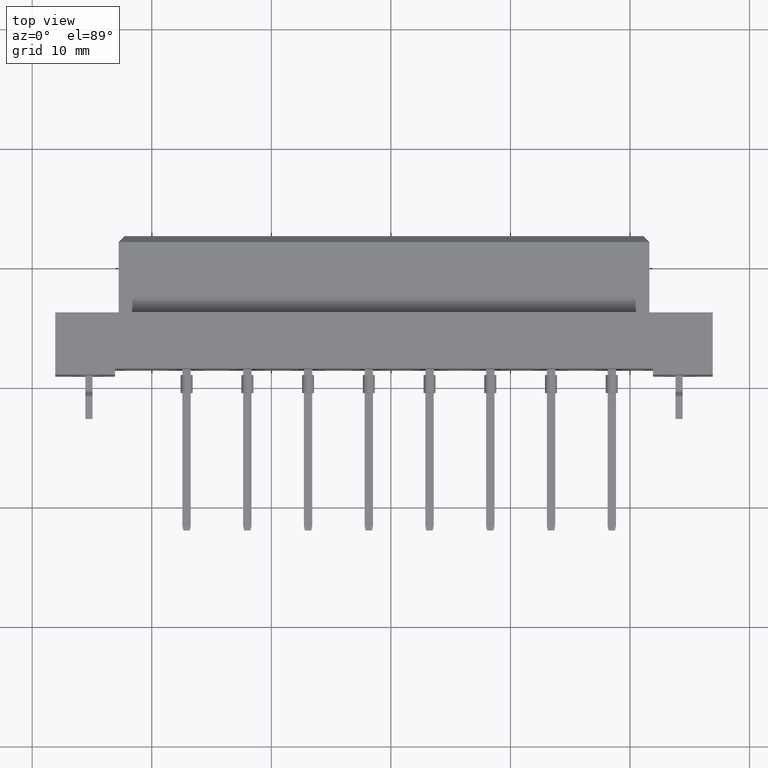
[diagram: clean part render]
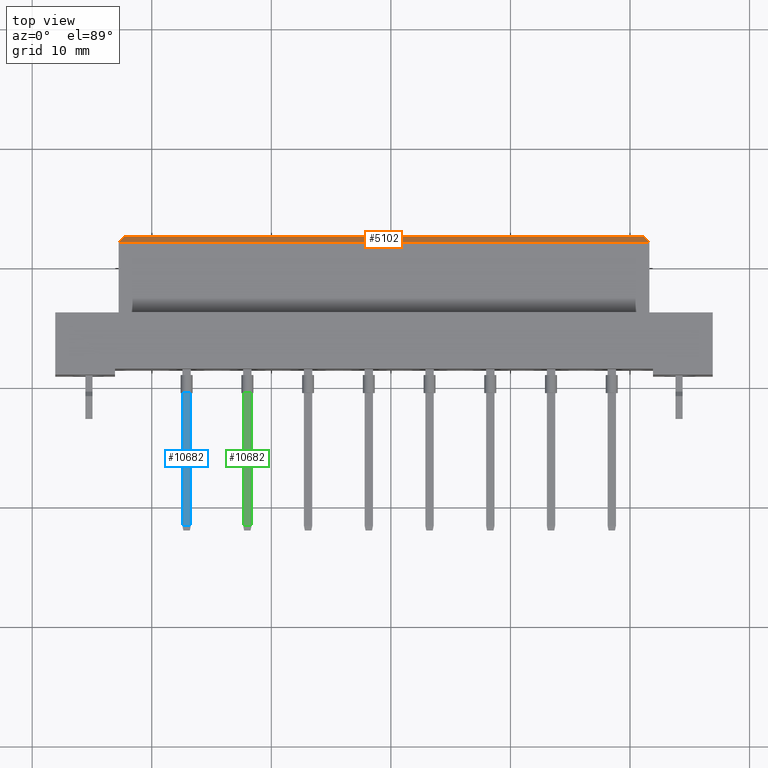
[diagram: same view with three faces highlighted in distinct colors, each labeled with its STEP entity id]
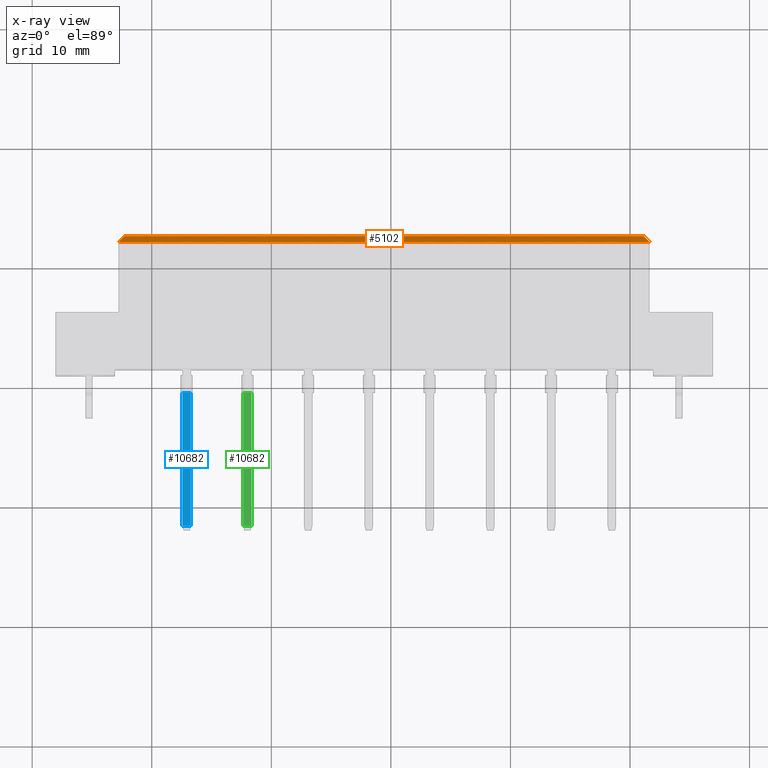
[diagram: x-ray of the same camera — body ghosted, the three highlighted faces saturated]
A machine part, top view with three faces highlighted in distinct colors.
The next image is the same camera in x-ray (body ghosted, the three faces saturated) — at least one of them is partly hidden behind the body in this view.
Their STEP definitions:

[orange] entity #5102 — the highlighted planar face has unit normal (0, 0.7071, 0.7071).
#275 = CARTESIAN_POINT ( 'NONE',  ( 21.69999999999997797, 0.0000000000000000000, 3.749999999999986677 ) ) ;
#1067 = VECTOR ( 'NONE', #14093, 999.9999999999998863 ) ;
#2697 = EDGE_CURVE ( 'NONE', #3259, #6049, #4433, .T. ) ;
#2765 = EDGE_LOOP ( 'NONE', ( #3588, #18241, #15588, #20747 ) ) ;
#3178 = VECTOR ( 'NONE', #17078, 1000.000000000000000 ) ;
#3259 = VERTEX_POINT ( 'NONE', #12567 ) ;
#3588 = ORIENTED_EDGE ( 'NONE', *, *, #20468, .T. ) ;
#4142 = LINE ( 'NONE', #14094, #3178 ) ;
#4159 = DIRECTION ( 'NONE',  ( 0.0000000000000000000, 0.7071067811865475727, 0.7071067811865475727 ) ) ;
#4433 = LINE ( 'NONE', #14187, #10288 ) ;
#5102 = ADVANCED_FACE ( 'NONE', ( #10822 ), #12022, .T. ) ;
#5105 = AXIS2_PLACEMENT_3D ( 'NONE', #7438, #4159, #20069 ) ;
#6049 = VERTEX_POINT ( 'NONE', #16469 ) ;
#6113 = VERTEX_POINT ( 'NONE', #275 ) ;
#7341 = LINE ( 'NONE', #20063, #7528 ) ;
#7438 = CARTESIAN_POINT ( 'NONE',  ( 27.49999999999999645, 0.0000000000000000000, 3.749999999999986677 ) ) ;
#7528 = VECTOR ( 'NONE', #15395, 999.9999999999998863 ) ;
#8720 = CARTESIAN_POINT ( 'NONE',  ( -21.69999999999997797, 0.0000000000000000000, 3.749999999999986677 ) ) ;
#9006 = EDGE_CURVE ( 'NONE', #9556, #6113, #4142, .T. ) ;
#9556 = VERTEX_POINT ( 'NONE', #8720 ) ;
#10288 = VECTOR ( 'NONE', #10895, 1000.000000000000000 ) ;
#10598 = CARTESIAN_POINT ( 'NONE',  ( 23.63333333333331510, -1.933333333333340232, 5.683333333333326465 ) ) ;
#10822 = FACE_OUTER_BOUND ( 'NONE', #2765, .T. ) ;
#10895 = DIRECTION ( 'NONE',  ( -1.000000000000000000, 0.0000000000000000000, 0.0000000000000000000 ) ) ;
#12022 = PLANE ( 'NONE',  #5105 ) ;
#12567 = CARTESIAN_POINT ( 'NONE',  ( 22.19999999999999218, -0.5000000000000143219, 4.250000000000000888 ) ) ;
#14093 = DIRECTION ( 'NONE',  ( 0.5773502691896257311, -0.5773502691896257311, 0.5773502691896257311 ) ) ;
#14094 = CARTESIAN_POINT ( 'NONE',  ( 22.19999999999999218, 0.0000000000000000000, 3.749999999999986677 ) ) ;
#14187 = CARTESIAN_POINT ( 'NONE',  ( -22.19999999999999218, -0.5000000000000143219, 4.250000000000000888 ) ) ;
#14977 = EDGE_CURVE ( 'NONE', #6113, #3259, #18858, .T. ) ;
#15395 = DIRECTION ( 'NONE',  ( -0.5773502691896257311, -0.5773502691896257311, 0.5773502691896257311 ) ) ;
#15588 = ORIENTED_EDGE ( 'NONE', *, *, #14977, .F. ) ;
#16469 = CARTESIAN_POINT ( 'NONE',  ( -22.19999999999999218, -0.5000000000000143219, 4.250000000000000888 ) ) ;
#17078 = DIRECTION ( 'NONE',  ( 1.000000000000000000, 0.0000000000000000000, -0.0000000000000000000 ) ) ;
#18241 = ORIENTED_EDGE ( 'NONE', *, *, #2697, .F. ) ;
#18858 = LINE ( 'NONE', #10598, #1067 ) ;
#20063 = CARTESIAN_POINT ( 'NONE',  ( -5.299999999999985612, 16.39999999999999147, -12.65000000000000568 ) ) ;
#20069 = DIRECTION ( 'NONE',  ( 0.0000000000000000000, -0.7071067811865474617, 0.7071067811865474617 ) ) ;
#20468 = EDGE_CURVE ( 'NONE', #9556, #6049, #7341, .T. ) ;
#20747 = ORIENTED_EDGE ( 'NONE', *, *, #9006, .F. ) ;

[blue] entity #10682 — the highlighted planar face has unit normal (0, -0, 1).
#264 = CARTESIAN_POINT ( 'NONE',  ( 16.65999999999999304, -0.1499999999999999944, 0.3499999999999999778 ) ) ;
#277 = CARTESIAN_POINT ( 'NONE',  ( 16.65999999999999304, -0.1499999999999999944, -0.3499999999999999778 ) ) ;
#504 = LINE ( 'NONE', #716, #15412 ) ;
#716 = CARTESIAN_POINT ( 'NONE',  ( 0.0000000000000000000, -0.1499999999999999944, 0.3499999999999999778 ) ) ;
#1164 = CARTESIAN_POINT ( 'NONE',  ( 5.559999999999998721, -0.1499999999999999944, 0.3499999999999999778 ) ) ;
#2567 = CARTESIAN_POINT ( 'NONE',  ( 16.65999999999999304, -0.1499999999999999944, 0.3499999999999999778 ) ) ;
#2701 = ORIENTED_EDGE ( 'NONE', *, *, #17889, .T. ) ;
#3017 = LINE ( 'NONE', #9469, #12957 ) ;
#5681 = EDGE_CURVE ( 'NONE', #19722, #18124, #504, .T. ) ;
#6509 = CARTESIAN_POINT ( 'NONE',  ( 0.0000000000000000000, -0.1499999999999999944, -0.3499999999999999778 ) ) ;
#6704 = DIRECTION ( 'NONE',  ( 0.0000000000000000000, 0.0000000000000000000, 1.000000000000000000 ) ) ;
#6750 = VERTEX_POINT ( 'NONE', #8338 ) ;
#8260 = LINE ( 'NONE', #19180, #12902 ) ;
#8338 = CARTESIAN_POINT ( 'NONE',  ( 5.559999999999998721, -0.1499999999999999944, -0.3499999999999999778 ) ) ;
#9469 = CARTESIAN_POINT ( 'NONE',  ( 5.559999999999998721, -0.1499999999999999944, -0.3499999999999999778 ) ) ;
#9520 = DIRECTION ( 'NONE',  ( -1.000000000000000000, -0.0000000000000000000, -0.0000000000000000000 ) ) ;
#9693 = PLANE ( 'NONE',  #12010 ) ;
#10157 = EDGE_LOOP ( 'NONE', ( #16214, #10860, #2701, #14519 ) ) ;
#10682 = ADVANCED_FACE ( 'NONE', ( #14563 ), #9693, .T. ) ;
#10860 = ORIENTED_EDGE ( 'NONE', *, *, #15113, .F. ) ;
#12010 = AXIS2_PLACEMENT_3D ( 'NONE', #6509, #19561, #19450 ) ;
#12288 = VECTOR ( 'NONE', #6704, 1000.000000000000000 ) ;
#12902 = VECTOR ( 'NONE', #9520, 1000.000000000000000 ) ;
#12957 = VECTOR ( 'NONE', #15941, 1000.000000000000000 ) ;
#14519 = ORIENTED_EDGE ( 'NONE', *, *, #5681, .F. ) ;
#14563 = FACE_OUTER_BOUND ( 'NONE', #10157, .T. ) ;
#15113 = EDGE_CURVE ( 'NONE', #16945, #6750, #8260, .T. ) ;
#15412 = VECTOR ( 'NONE', #18397, 1000.000000000000000 ) ;
#15916 = LINE ( 'NONE', #264, #12288 ) ;
#15941 = DIRECTION ( 'NONE',  ( -0.0000000000000000000, 0.0000000000000000000, 1.000000000000000000 ) ) ;
#16214 = ORIENTED_EDGE ( 'NONE', *, *, #17391, .F. ) ;
#16945 = VERTEX_POINT ( 'NONE', #277 ) ;
#17391 = EDGE_CURVE ( 'NONE', #6750, #19722, #3017, .T. ) ;
#17889 = EDGE_CURVE ( 'NONE', #16945, #18124, #15916, .T. ) ;
#18124 = VERTEX_POINT ( 'NONE', #2567 ) ;
#18397 = DIRECTION ( 'NONE',  ( 1.000000000000000000, 0.0000000000000000000, 0.0000000000000000000 ) ) ;
#19180 = CARTESIAN_POINT ( 'NONE',  ( 0.0000000000000000000, -0.1499999999999999944, -0.3499999999999999778 ) ) ;
#19450 = DIRECTION ( 'NONE',  ( 0.0000000000000000000, -0.0000000000000000000, -1.000000000000000000 ) ) ;
#19561 = DIRECTION ( 'NONE',  ( 0.0000000000000000000, -1.000000000000000000, 0.0000000000000000000 ) ) ;
#19722 = VERTEX_POINT ( 'NONE', #1164 ) ;

[green] entity #10682 — the highlighted planar face has unit normal (0, -0, 1).
#264 = CARTESIAN_POINT ( 'NONE',  ( 16.65999999999999304, -0.1499999999999999944, 0.3499999999999999778 ) ) ;
#277 = CARTESIAN_POINT ( 'NONE',  ( 16.65999999999999304, -0.1499999999999999944, -0.3499999999999999778 ) ) ;
#504 = LINE ( 'NONE', #716, #15412 ) ;
#716 = CARTESIAN_POINT ( 'NONE',  ( 0.0000000000000000000, -0.1499999999999999944, 0.3499999999999999778 ) ) ;
#1164 = CARTESIAN_POINT ( 'NONE',  ( 5.559999999999998721, -0.1499999999999999944, 0.3499999999999999778 ) ) ;
#2567 = CARTESIAN_POINT ( 'NONE',  ( 16.65999999999999304, -0.1499999999999999944, 0.3499999999999999778 ) ) ;
#2701 = ORIENTED_EDGE ( 'NONE', *, *, #17889, .T. ) ;
#3017 = LINE ( 'NONE', #9469, #12957 ) ;
#5681 = EDGE_CURVE ( 'NONE', #19722, #18124, #504, .T. ) ;
#6509 = CARTESIAN_POINT ( 'NONE',  ( 0.0000000000000000000, -0.1499999999999999944, -0.3499999999999999778 ) ) ;
#6704 = DIRECTION ( 'NONE',  ( 0.0000000000000000000, 0.0000000000000000000, 1.000000000000000000 ) ) ;
#6750 = VERTEX_POINT ( 'NONE', #8338 ) ;
#8260 = LINE ( 'NONE', #19180, #12902 ) ;
#8338 = CARTESIAN_POINT ( 'NONE',  ( 5.559999999999998721, -0.1499999999999999944, -0.3499999999999999778 ) ) ;
#9469 = CARTESIAN_POINT ( 'NONE',  ( 5.559999999999998721, -0.1499999999999999944, -0.3499999999999999778 ) ) ;
#9520 = DIRECTION ( 'NONE',  ( -1.000000000000000000, -0.0000000000000000000, -0.0000000000000000000 ) ) ;
#9693 = PLANE ( 'NONE',  #12010 ) ;
#10157 = EDGE_LOOP ( 'NONE', ( #16214, #10860, #2701, #14519 ) ) ;
#10682 = ADVANCED_FACE ( 'NONE', ( #14563 ), #9693, .T. ) ;
#10860 = ORIENTED_EDGE ( 'NONE', *, *, #15113, .F. ) ;
#12010 = AXIS2_PLACEMENT_3D ( 'NONE', #6509, #19561, #19450 ) ;
#12288 = VECTOR ( 'NONE', #6704, 1000.000000000000000 ) ;
#12902 = VECTOR ( 'NONE', #9520, 1000.000000000000000 ) ;
#12957 = VECTOR ( 'NONE', #15941, 1000.000000000000000 ) ;
#14519 = ORIENTED_EDGE ( 'NONE', *, *, #5681, .F. ) ;
#14563 = FACE_OUTER_BOUND ( 'NONE', #10157, .T. ) ;
#15113 = EDGE_CURVE ( 'NONE', #16945, #6750, #8260, .T. ) ;
#15412 = VECTOR ( 'NONE', #18397, 1000.000000000000000 ) ;
#15916 = LINE ( 'NONE', #264, #12288 ) ;
#15941 = DIRECTION ( 'NONE',  ( -0.0000000000000000000, 0.0000000000000000000, 1.000000000000000000 ) ) ;
#16214 = ORIENTED_EDGE ( 'NONE', *, *, #17391, .F. ) ;
#16945 = VERTEX_POINT ( 'NONE', #277 ) ;
#17391 = EDGE_CURVE ( 'NONE', #6750, #19722, #3017, .T. ) ;
#17889 = EDGE_CURVE ( 'NONE', #16945, #18124, #15916, .T. ) ;
#18124 = VERTEX_POINT ( 'NONE', #2567 ) ;
#18397 = DIRECTION ( 'NONE',  ( 1.000000000000000000, 0.0000000000000000000, 0.0000000000000000000 ) ) ;
#19180 = CARTESIAN_POINT ( 'NONE',  ( 0.0000000000000000000, -0.1499999999999999944, -0.3499999999999999778 ) ) ;
#19450 = DIRECTION ( 'NONE',  ( 0.0000000000000000000, -0.0000000000000000000, -1.000000000000000000 ) ) ;
#19561 = DIRECTION ( 'NONE',  ( 0.0000000000000000000, -1.000000000000000000, 0.0000000000000000000 ) ) ;
#19722 = VERTEX_POINT ( 'NONE', #1164 ) ;